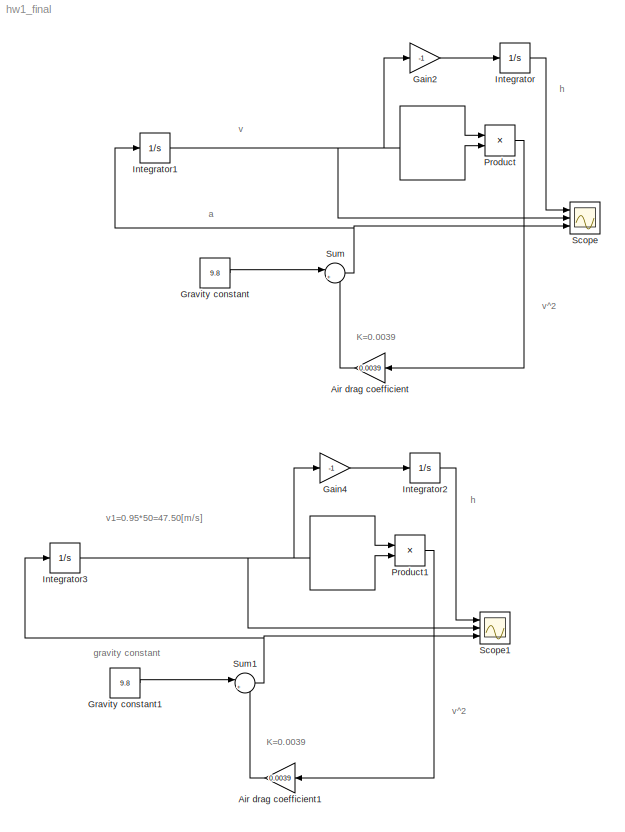
MODEL hw1_final
KIND model
BLOCK [Gain] Air drag coefficient
  Gain = 0.0039
  OutDataTypeStr = Inherit: Inherit via internal rule
  ParamDataTypeStr = Inherit: Inherit via internal rule
  SID = 11
  SaturateOnIntegerOverflow = off
BLOCK [Gain] Air drag coefficient1
  Gain = 0.0039
  OutDataTypeStr = Inherit: Inherit via internal rule
  ParamDataTypeStr = Inherit: Inherit via internal rule
  SID = 18
  SaturateOnIntegerOverflow = off
BLOCK [Gain] Gain2
  Gain = -1
  OutDataTypeStr = Inherit: Inherit via internal rule
  ParamDataTypeStr = Inherit: Inherit via internal rule
  SID = 15
  SaturateOnIntegerOverflow = off
BLOCK [Gain] Gain4
  Gain = -1
  OutDataTypeStr = Inherit: Inherit via internal rule
  ParamDataTypeStr = Inherit: Inherit via internal rule
  SID = 19
  SaturateOnIntegerOverflow = off
BLOCK [Constant] Gravity constant
  SID = 6
  Value = 9.8
BLOCK [Constant] Gravity constant1
  SID = 17
  Value = 9.8
BLOCK [Integrator] Integrator
  InitialCondition = 1000
  Ports = [1, 1]
  SID = 1
BLOCK [Integrator] Integrator1
  Ports = [1, 1]
  SID = 2
  UpperSaturationLimit = 47.5
BLOCK [Integrator] Integrator2
  InitialCondition = 1000
  Ports = [1, 1]
  SID = 20
BLOCK [Integrator] Integrator3
  LimitOutput = on
  Ports = [1, 1]
  SID = 21
  UpperSaturationLimit = 47.5
BLOCK [Product] Product
  InputSameDT = off
  OutDataTypeStr = Inherit: Inherit via internal rule
  Ports = [2, 1]
  RndMeth = Floor
  SID = 9
  SaturateOnIntegerOverflow = off
BLOCK [Product] Product1
  InputSameDT = off
  OutDataTypeStr = Inherit: Inherit via internal rule
  Ports = [2, 1]
  RndMeth = Floor
  SID = 22
  SaturateOnIntegerOverflow = off
BLOCK [Scope] Scope
  DataFormat = StructureWithTime
  Floating = off
  NumInputPorts = 3
  Ports = [3]
  SID = 8
  SampleTime = 0
  ShowLegends = off
  YMax = 5~5~5
  YMin = -5~-5~-5
  ZoomMode = yonly
BLOCK [Scope] Scope1
  DataFormat = StructureWithTime
  Floating = off
  NumInputPorts = 3
  Ports = [3]
  SID = 23
  SampleTime = 0
  SaveName = ScopeData1
  ShowLegends = off
  YMax = 5~5~5
  YMin = -5~-5~-5
  ZoomMode = yonly
BLOCK [Sum] Sum
  IconShape = round
  InputSameDT = off
  Inputs = |+-
  OutDataTypeStr = Inherit: Inherit via internal rule
  Ports = [2, 1]
  SID = 7
  SaturateOnIntegerOverflow = off
BLOCK [Sum] Sum1
  IconShape = round
  InputSameDT = off
  Inputs = |+-
  OutDataTypeStr = Inherit: Inherit via internal rule
  Ports = [2, 1]
  SID = 24
  SaturateOnIntegerOverflow = off
ANNOTATION (root): K=0.0039
ANNOTATION (root): a
ANNOTATION (root): gravity constant
ANNOTATION (root): h
ANNOTATION (root): v
ANNOTATION (root): v1=0.95*50=47.50[m/s]
ANNOTATION (root): v^2
LINE Air drag coefficient1:1 -> Sum1:2
LINE Air drag coefficient:1 -> Sum:2
LINE Gain2:1 -> Integrator:1
LINE Gain4:1 -> Integrator2:1
LINE Gravity constant1:1 -> Sum1:1
LINE Gravity constant:1 -> Sum:1
NET Integrator1:1 -> Gain2:1, Product:1, Product:2, Scope:2
LINE Integrator2:1 -> Scope1:1
NET Integrator3:1 -> Gain4:1, Product1:1, Product1:2, Scope1:2
LINE Integrator:1 -> Scope:1
LINE Product1:1 -> Air drag coefficient1:1
LINE Product:1 -> Air drag coefficient:1
NET Sum1:1 -> Integrator3:1, Scope1:3
NET Sum:1 -> Integrator1:1, Scope:3
note: NET lines group one-source signal fan-out (src -> all destinations, sorted); 1:1 wires keep LINE
